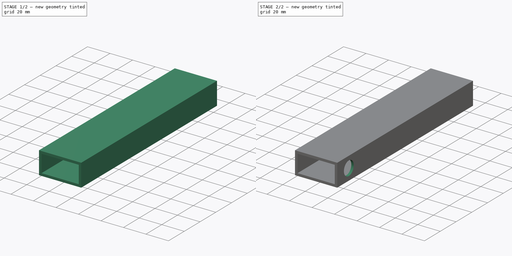
[diagram: build sequence overview — one tinted view per stage of 2, left to right]
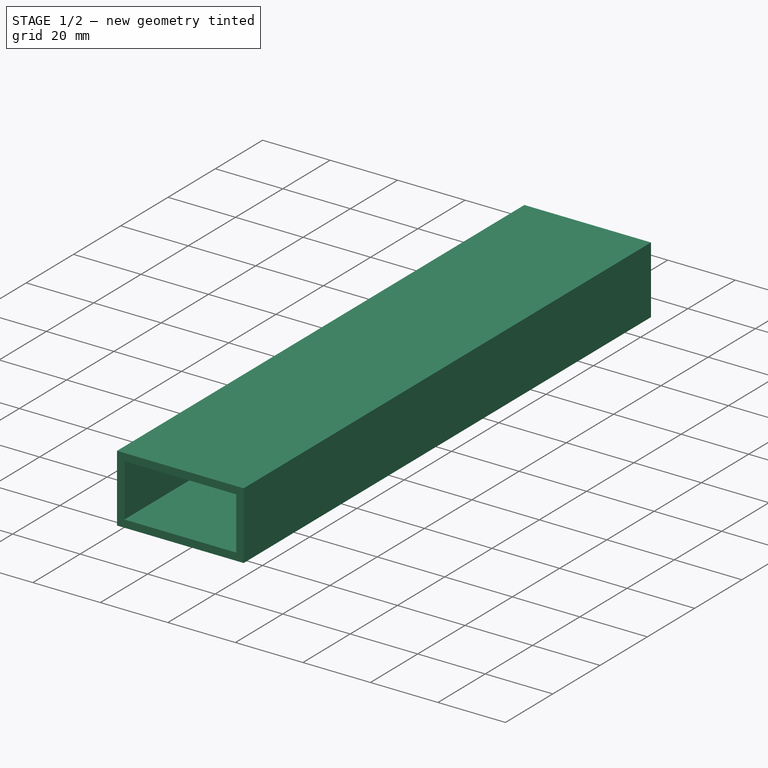
[diagram: stage 1 of 2 — iso view after this stage's code; geometry added in this stage tinted green]
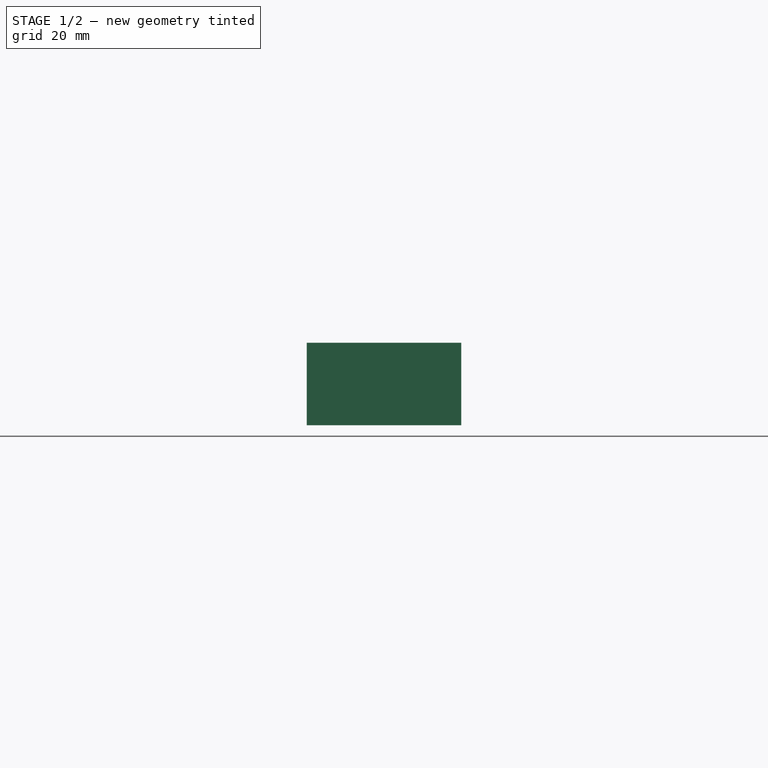
[diagram: stage 1 of 2 — front view after this stage's code; geometry added in this stage tinted green]
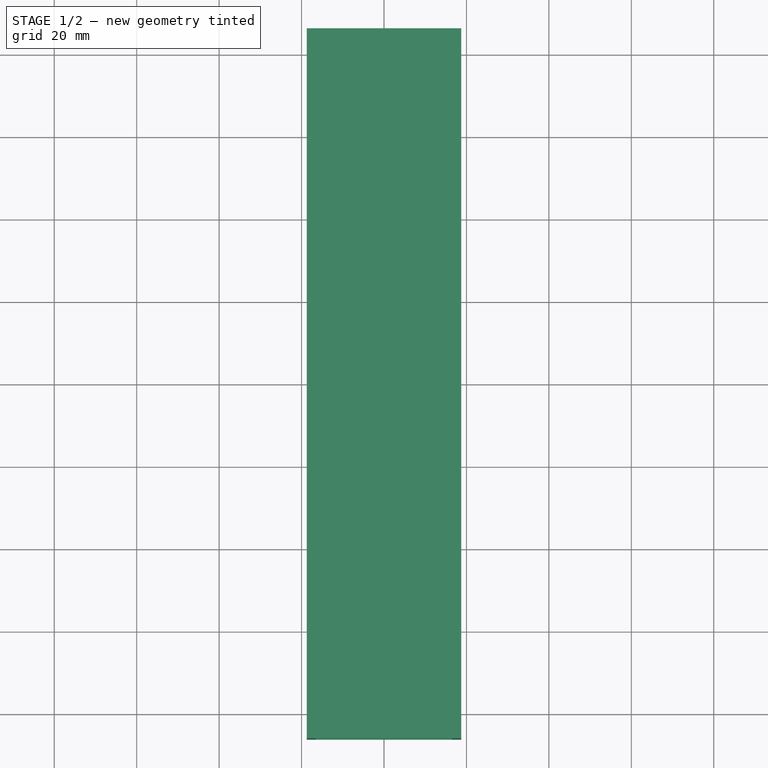
[diagram: stage 1 of 2 — top view after this stage's code; geometry added in this stage tinted green]
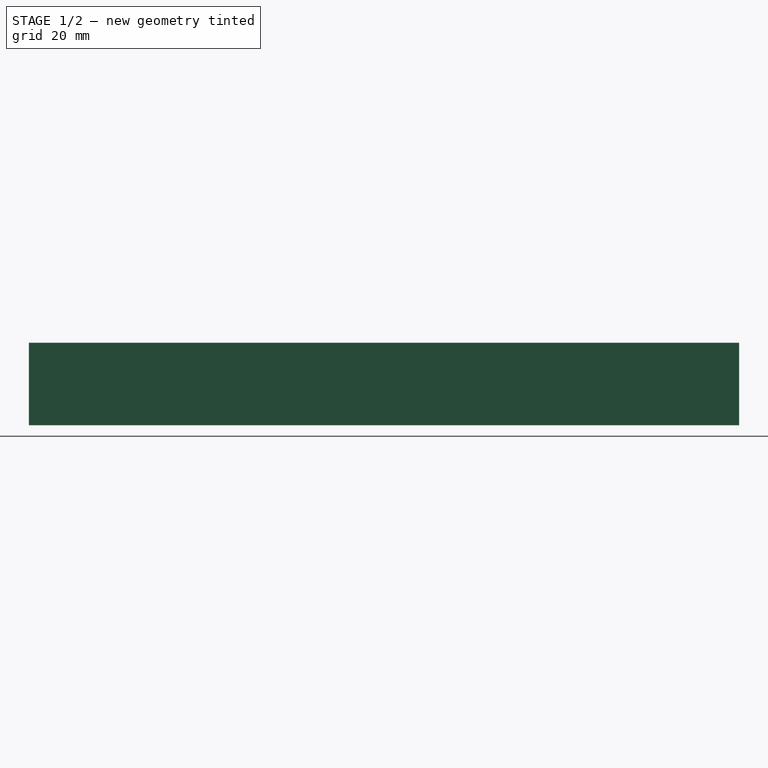
[diagram: stage 1 of 2 — right view after this stage's code; geometry added in this stage tinted green]
FCSTD DOCUMENT  (FreeCAD 0.19R)
Label: deslizar2
License: All rights reserved
LicenseURL: http://en.wikipedia.org/wiki/All_rights_reserved
objects: Sketcher::SketchObject×3, PartDesign::Pocket×2, App::Part×1, PartDesign::Pad×1, PartDesign::Body×1
note: 10 computed .brp shape members not serialized (recipe doc carries the construction recipe); baked Part::Feature solids carry a one-line shape summary decoded from their .brp

FEATURE [App::Part] Part
  Origin = -> Origin
FEATURE [Sketcher::SketchObject] Sketch
  FullyConstrained = true
  MapMode = 5
  Support = -> [XY_Plane001]
  sketch-geometry (6):
    g0: LineSegment StartX=-18.75 StartY=-86.15 StartZ=0 EndX=18.75 EndY=-86.15 EndZ=0
    g1: LineSegment StartX=18.75 StartY=-86.15 StartZ=0 EndX=18.75 EndY=86.15 EndZ=0
    g2: LineSegment StartX=18.75 StartY=86.15 StartZ=0 EndX=-18.75 EndY=86.15 EndZ=0
    g3: LineSegment StartX=-18.75 StartY=86.15 StartZ=0 EndX=-18.75 EndY=-86.15 EndZ=0
    g4: LineSegment StartX=-18.75 StartY=-86.15 StartZ=0 EndX=0 EndY=0 EndZ=0
    g5: LineSegment StartX=18.75 StartY=86.15 StartZ=0 EndX=0 EndY=0 EndZ=0
  constraints (16):
    c: Coincident(g0,g1)
    c: Coincident(g1,g2)
    c: Coincident(g2,g3)
    c: Coincident(g3,g0)
    c: Horizontal(g0)
    c: Horizontal(g2)
    c: Vertical(g1)
    c: Vertical(g3)
    c: Coincident(g4,g0)
    c: Coincident(g4,g-1)
    c: Coincident(g5,g1)
    c: Coincident(g5,g-1)
    c: Parallel(g4,g5)
    c: DistanceY(g1,g1) = 172.3
    c: DistanceX(g0,g0) = 37.5
    c: Equal(g4,g5)
FEATURE [PartDesign::Pad] Pad
  Direction = (1,1,1)
  Length = 20
  Length2 = 100
  Profile = -> Sketch
  Refine = true
  Type = 0
FEATURE [Sketcher::SketchObject] Sketch001
  ExternalGeometry = -> [Pad]
  FullyConstrained = false
  MapMode = 5
  Placement = pos=(0,-86.15,0) rot=(1,0,0;1.5708rad)
  Support = -> [Pad]
  sketch-geometry (8):
    g0: LineSegment StartX=-16.55 StartY=2.2 StartZ=0 EndX=16.55 EndY=2.2 EndZ=0
    g1: LineSegment StartX=16.55 StartY=2.2 StartZ=0 EndX=16.55 EndY=17.8 EndZ=0
    g2: LineSegment StartX=16.55 StartY=17.8 StartZ=0 EndX=-16.55 EndY=17.8 EndZ=0
    g3: LineSegment StartX=-16.55 StartY=17.8 StartZ=0 EndX=-16.55 EndY=2.2 EndZ=0
    g4: LineSegment StartX=-18.75 StartY=16.933 StartZ=0 EndX=-16.55 EndY=16.933 EndZ=0
    g5: LineSegment StartX=-15.6528 StartY=17.8 StartZ=0 EndX=-15.6528 EndY=20 EndZ=0
    g6: LineSegment StartX=15.1546 StartY=2.2 StartZ=0 EndX=15.1546 EndY=0 EndZ=0
    g7: LineSegment StartX=16.55 StartY=4.13026 StartZ=0 EndX=18.75 EndY=4.13026 EndZ=0
  constraints (24):
    c: Coincident(g0,g1)
    c: Coincident(g1,g2)
    c: Coincident(g2,g3)
    c: Coincident(g3,g0)
    c: Horizontal(g0)
    c: Horizontal(g2)
    c: Vertical(g1)
    c: Vertical(g3)
    c: PointOnObject(g4,g-6)
    c: PointOnObject(g4,g3)
    c: Horizontal(g4)
    c: PointOnObject(g5,g2)
    c: PointOnObject(g5,g-3)
    c: Vertical(g5)
    c: PointOnObject(g6,g0)
    c: PointOnObject(g6,g-5)
    c: Vertical(g6)
    c: PointOnObject(g7,g1)
    c: PointOnObject(g7,g-4)
    c: Horizontal(g7)
    c: DistanceY(g6,g6) = 2.2
    c: DistanceX(g7,g7) = 2.2
    c: DistanceX(g4,g4) = 2.2
    c: DistanceY(g5,g5) = 2.2
FEATURE [PartDesign::Pocket] Pocket
  BaseFeature = -> Pad
  Length = 172
  Length2 = 100
  Profile = -> Sketch001
  Refine = true
  Type = 0
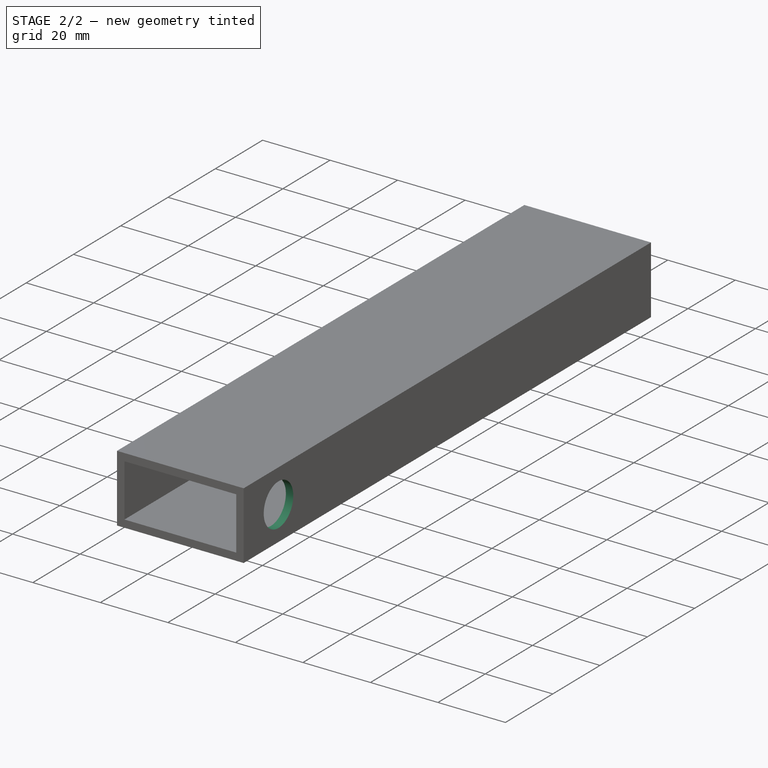
[diagram: stage 2 of 2 — iso view after this stage's code; geometry added in this stage tinted green]
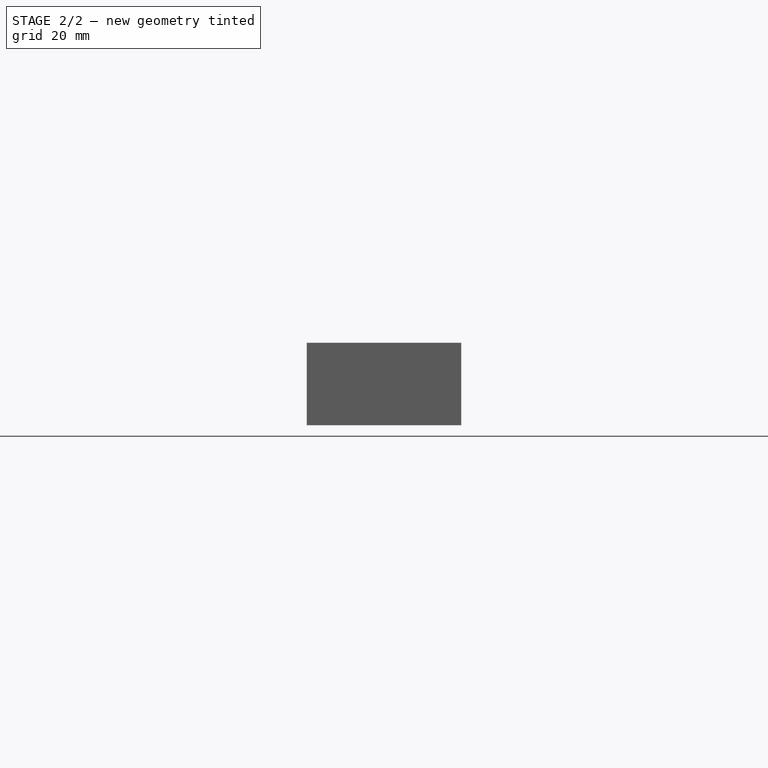
[diagram: stage 2 of 2 — front view after this stage's code; geometry added in this stage tinted green]
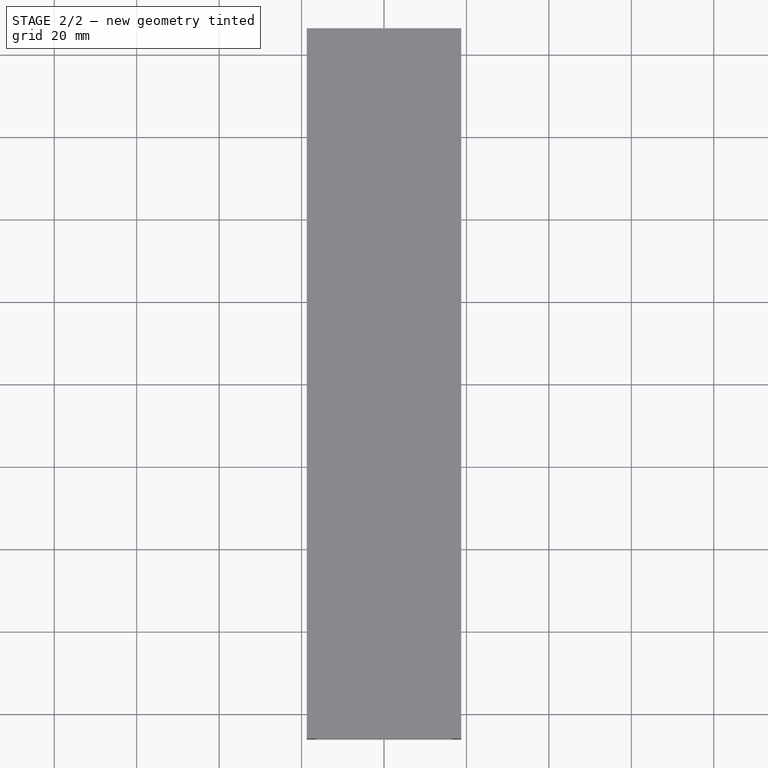
[diagram: stage 2 of 2 — top view after this stage's code; geometry added in this stage tinted green]
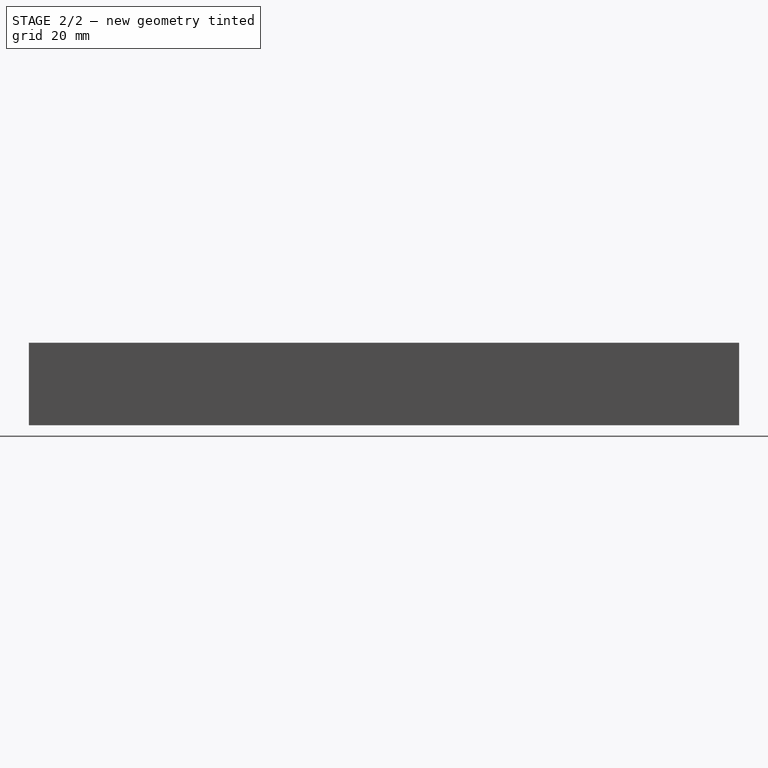
[diagram: stage 2 of 2 — right view after this stage's code; geometry added in this stage tinted green]
FEATURE [Sketcher::SketchObject] Sketch002
  ExternalGeometry = -> [Pocket]
  FullyConstrained = false
  MapMode = 5
  Placement = pos=(18.75,0,0) rot=(0.57735,0.57735,0.57735;2.0944rad)
  Support = -> [Pocket]
  sketch-geometry (11):
    g0: LineSegment StartX=-77.65 StartY=16.25 StartZ=0 EndX=-54.65 EndY=16.25 EndZ=0
    g1: LineSegment StartX=-54.65 StartY=16.25 StartZ=0 EndX=-54.65 EndY=3.75 EndZ=0
    g2: LineSegment StartX=-54.65 StartY=3.75 StartZ=0 EndX=-77.65 EndY=3.75 EndZ=0
    g3: LineSegment StartX=-77.65 StartY=3.75 StartZ=0 EndX=-77.65 EndY=16.25 EndZ=0
    g4: LineSegment StartX=-80.4648 StartY=16.25 StartZ=0 EndX=-80.4648 EndY=20 EndZ=0
    g5: LineSegment StartX=-80.9314 StartY=3.75 StartZ=0 EndX=-80.9314 EndY=0 EndZ=0
    g6: LineSegment StartX=-86.15 StartY=12.3242 StartZ=0 EndX=-77.65 EndY=12.3242 EndZ=0
    g7: LineSegment StartX=-77.65 StartY=3.75 StartZ=0 EndX=-77.65 EndY=11.4479 EndZ=0
    g8: LineSegment StartX=-71.4 StartY=3.75 StartZ=0 EndX=-71.4 EndY=10 EndZ=0
    g9: LineSegment StartX=-77.65 StartY=10 StartZ=0 EndX=-71.4 EndY=10 EndZ=0
    g10: Circle CenterX=-71.4 CenterY=10 CenterZ=0 NormalX=0 NormalY=0 NormalZ=1 AngleXU=0 Radius=6.25
  constraints (32):
    c: Coincident(g0,g1)
    c: Coincident(g1,g2)
    c: Coincident(g2,g3)
    c: Coincident(g3,g0)
    c: Horizontal(g0)
    c: Horizontal(g2)
    c: Vertical(g1)
    c: Vertical(g3)
    c: DistanceY(g1,g1) = 12.5
    c: DistanceX(g2,g2) = 23
    c: PointOnObject(g4,g0)
    c: PointOnObject(g4,g-4)
    c: Vertical(g4)
    c: PointOnObject(g5,g2)
    c: PointOnObject(g5,g-5)
    c: Vertical(g5)
    c: PointOnObject(g6,g-3)
    c: PointOnObject(g6,g3)
    c: Horizontal(g6)
    c: Equal(g5,g4)
    c: DistanceX(g6,g6) = 8.5
    c: Coincident(g7,g2)
    c: PointOnObject(g7,g3)
    c: PointOnObject(g8,g2)
    c: Vertical(g8)
    c: DistanceY(g8,g8) = 6.25
    c: PointOnObject(g9,g3)
    c: Coincident(g9,g8)
    c: Horizontal(g9)
    c: DistanceX(g9,g9) = 6.25
    c: Coincident(g10,g8)
    c: PointOnObject(g9,g10)
FEATURE [PartDesign::Pocket] Pocket001
  BaseFeature = -> Pocket
  Length = 10
  Length2 = 100
  Profile = -> Sketch002
  Refine = true
  Type = 0
FEATURE [PartDesign::Body] Body
  Group = -> [Sketch,Pad,Sketch001,Pocket,Sketch002,Pocket001]
  Origin = -> Origin001
  Tip = -> Pocket001
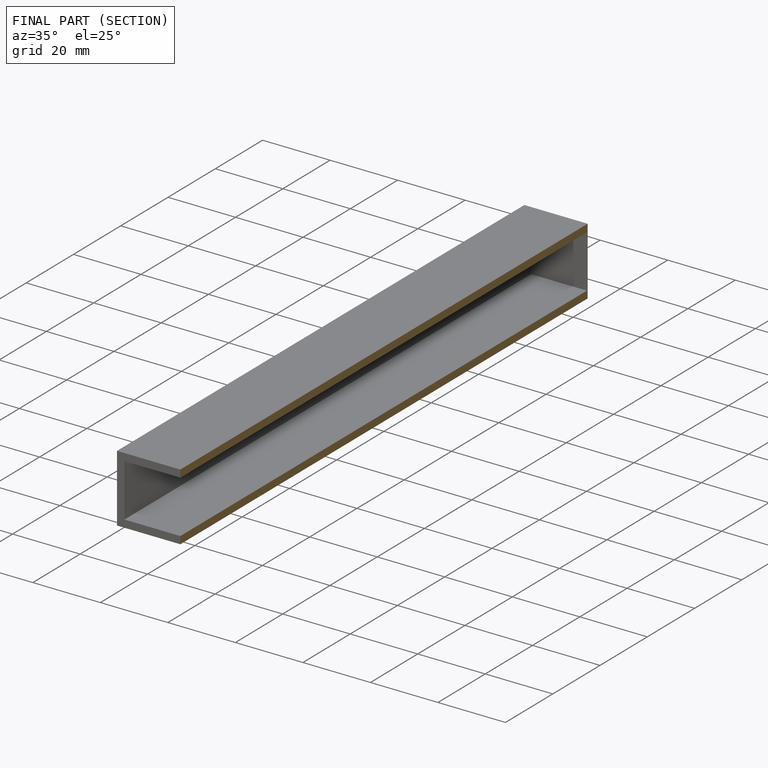
[diagram: finished part — half-section view (interior)]
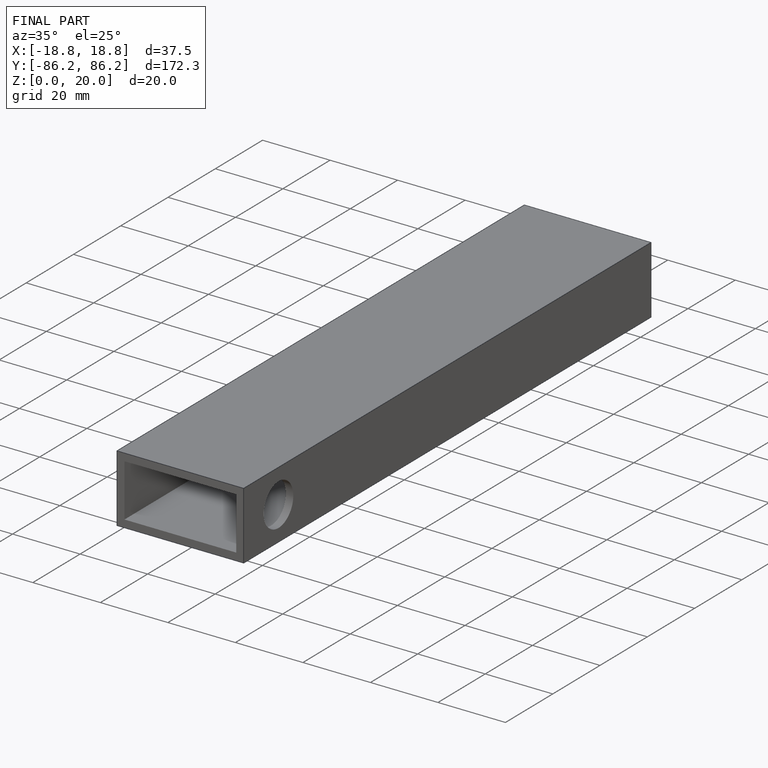
[diagram: finished part — iso view with bounding-box wireframe]
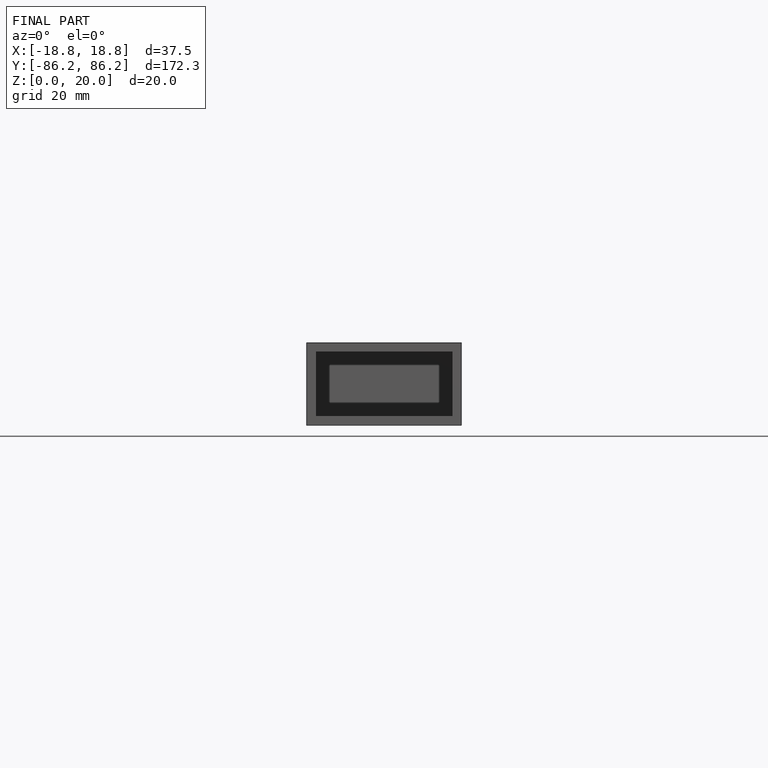
[diagram: finished part — front view with bounding-box wireframe]
